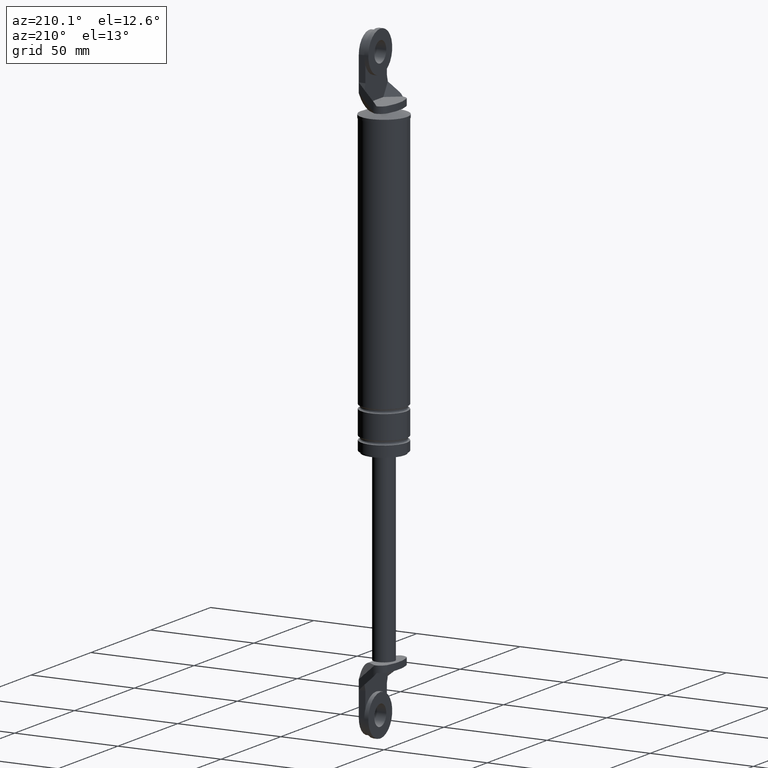
[diagram: clean part render]
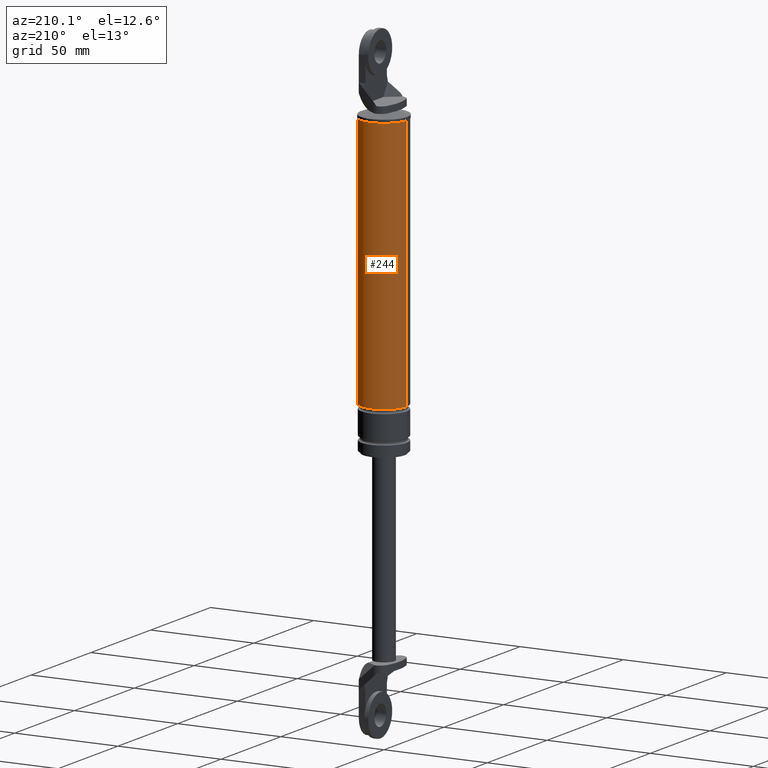
[diagram: same view with one face highlighted and labeled with its STEP entity id]
A machine part, auxiliary view. The second image highlights one B-rep face of the part: STEP entity #244.
In plain terms, the highlighted cylindrical surface (edge-blend (fillet) strip) has radius 11 mm, axis along (0, 0, 1).
Its self-contained STEP definition (entity closure, byte-faithful):
#244=ADVANCED_FACE('',(#697),#696,.T.);
#696=CYLINDRICAL_SURFACE('',#1420,1.10000000000E+001);
#697=FACE_OUTER_BOUND('',#1421,.T.);
#1417=CARTESIAN_POINT('',(0.00000000000E+000,3.58204186421E-014,0.00000000000E+000));
#1418=DIRECTION('',(-0.00000000000E+000,-0.00000000000E+000,1.00000000000E+000));
#1419=DIRECTION('',(1.00000000000E+000,0.00000000000E+000,0.00000000000E+000));
#1420=AXIS2_PLACEMENT_3D('',#1417,#1418,#1419);
#1421=EDGE_LOOP('',(#1972,#1973,#1974,#1975));
#1972=ORIENTED_EDGE('',*,*,#2263,.T.);
#1973=ORIENTED_EDGE('',*,*,#2285,.F.);
#1974=ORIENTED_EDGE('',*,*,#2286,.F.);
#1975=ORIENTED_EDGE('',*,*,#2287,.T.);
#2263=EDGE_CURVE('',#2934,#2933,#2941,.T.);
#2285=EDGE_CURVE('',#3084,#2933,#3085,.T.);
#2286=EDGE_CURVE('',#3091,#3084,#3092,.T.);
#2287=EDGE_CURVE('',#3091,#2934,#3098,.T.);
#2933=VERTEX_POINT('',#4056);
#2934=VERTEX_POINT('',#4057);
#2941=CIRCLE('',#4065,1.10000000000E+001);
#3084=VERTEX_POINT('',#4151);
#3085=(BOUNDED_CURVE() B_SPLINE_CURVE(1,(#4152,#4153),.UNSPECIFIED.,.F.,.F.) B_SPLINE_CURVE_WITH_KNOTS((2,2),(6.99300700795E-002,9.30069930402E-001),.UNSPECIFIED.) CURVE() GEOMETRIC_REPRESENTATION_ITEM() RATIONAL_B_SPLINE_CURVE((1.00000000000E+000,1.00000000000E+000)) REPRESENTATION_ITEM('') );
#3091=VERTEX_POINT('',#4154);
#3092=CIRCLE('',#4158,1.10000000000E+001);
#3098=(BOUNDED_CURVE() B_SPLINE_CURVE(1,(#4159,#4160),.UNSPECIFIED.,.F.,.F.) B_SPLINE_CURVE_WITH_KNOTS((2,2),(6.99300699301E-002,9.30069930070E-001),.UNSPECIFIED.) CURVE() GEOMETRIC_REPRESENTATION_ITEM() RATIONAL_B_SPLINE_CURVE((7.50000000000E-001,7.50000000000E-001)) REPRESENTATION_ITEM('') );
#4056=CARTESIAN_POINT('',(1.10000000000E+001,3.61192557345E-014,8.49999850000E+001));
#4057=CARTESIAN_POINT('',(-1.10000000000E+001,3.58204186421E-014,8.49999850000E+001));
#4062=CARTESIAN_POINT('',(0.00000000000E+000,3.58204186421E-014,8.49999850000E+001));
#4063=DIRECTION('',(-0.00000000000E+000,0.00000000000E+000,-1.00000000000E+000));
#4064=DIRECTION('',(-1.00000000000E+000,-1.22460635382E-016,0.00000000000E+000));
#4065=AXIS2_PLACEMENT_3D('',#4062,#4063,#4064);
#4151=CARTESIAN_POINT('',(1.10000000000E+001,3.61192557345E-014,-3.80000150000E+001));
#4152=CARTESIAN_POINT('',(1.10000000000E+001,3.58204186421E-014,-3.80000149786E+001));
#4153=CARTESIAN_POINT('',(1.10000000000E+001,3.58204186421E-014,8.49999850475E+001));
#4154=CARTESIAN_POINT('',(-1.10000000000E+001,3.58204186421E-014,-3.80000150000E+001));
#4155=CARTESIAN_POINT('',(0.00000000000E+000,3.58204186421E-014,-3.80000150000E+001));
#4156=DIRECTION('',(-0.00000000000E+000,0.00000000000E+000,-1.00000000000E+000));
#4157=DIRECTION('',(-1.00000000000E+000,-1.22460635382E-016,0.00000000000E+000));
#4158=AXIS2_PLACEMENT_3D('',#4155,#4156,#4157);
#4159=CARTESIAN_POINT('',(-1.10000000000E+001,3.55271367880E-014,-3.80000150000E+001));
#4160=CARTESIAN_POINT('',(-1.10000000000E+001,3.55271367880E-014,8.49999850000E+001));